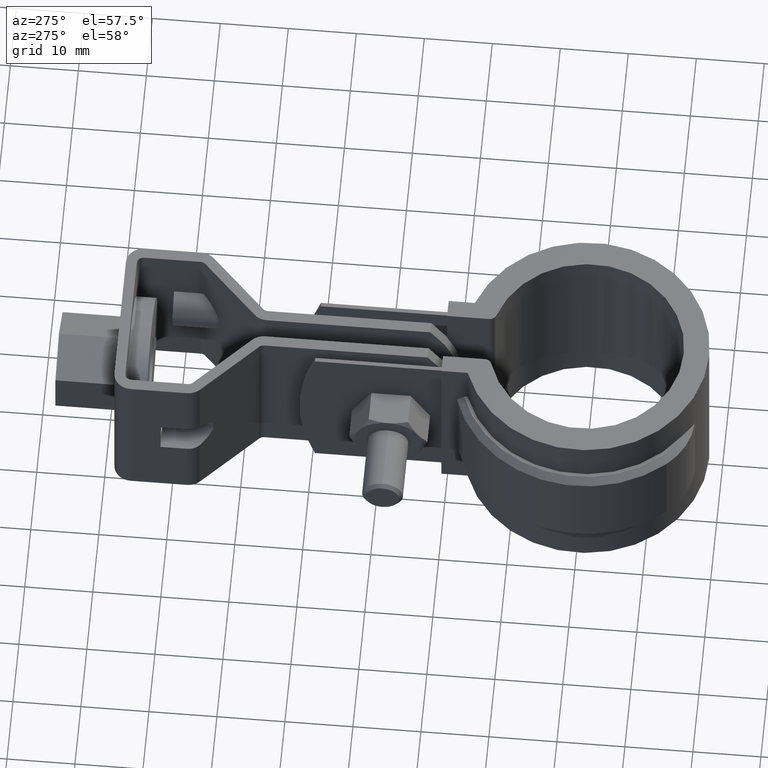
[diagram: clean part render]
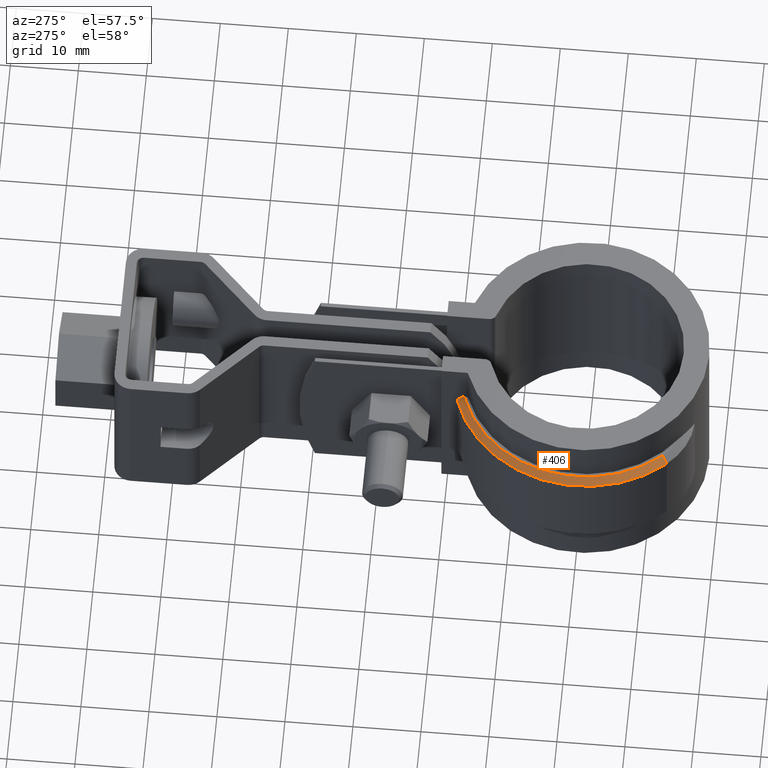
[diagram: same view with one face highlighted and labeled with its STEP entity id]
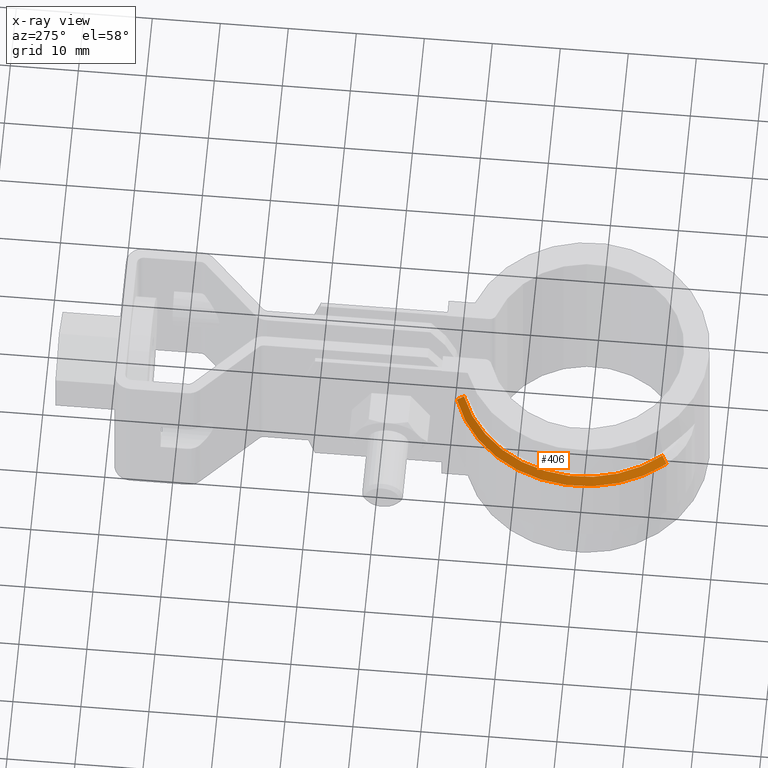
[diagram: x-ray of the same camera — body ghosted, the highlighted face saturated]
A machine part, auxiliary view. The second image highlights one B-rep face of the part: STEP entity #406.
The next image is the same camera in x-ray: the body ghosted, the highlighted face saturated — about 0% of this face is hidden behind the body in this view.
In plain terms, the highlighted conical surface has half-angle 45 deg.
Its self-contained STEP definition (entity closure, byte-faithful):
#406 = ADVANCED_FACE( '', ( #711 ), #712, .T. );
#711 = FACE_OUTER_BOUND( '', #1593, .T. );
#712 = CONICAL_SURFACE( '', #1594, 18.5350000000000, 0.785398163397447 );
#1593 = EDGE_LOOP( '', ( #3715, #3716, #3717, #3718 ) );
#1594 = AXIS2_PLACEMENT_3D( '', #3719, #3720, #3721 );
#3715 = ORIENTED_EDGE( '', *, *, #4781, .F. );
#3716 = ORIENTED_EDGE( '', *, *, #4941, .F. );
#3717 = ORIENTED_EDGE( '', *, *, #4956, .F. );
#3718 = ORIENTED_EDGE( '', *, *, #4959, .F. );
#3719 = CARTESIAN_POINT( '', ( -8.67361737988404E-016, 0.000000000000000, -5.00000000000000 ) );
#3720 = DIRECTION( '', ( 0.000000000000000, 0.000000000000000, -1.00000000000000 ) );
#3721 = DIRECTION( '', ( -1.00000000000000, 0.000000000000000, 0.000000000000000 ) );
#4781 = EDGE_CURVE( '', #5457, #5459, #5460, .T. );
#4941 = EDGE_CURVE( '', #5732, #5457, #5734, .F. );
#4956 = EDGE_CURVE( '', #5754, #5732, #5755, .T. );
#4959 = EDGE_CURVE( '', #5459, #5754, #5758, .T. );
#5457 = VERTEX_POINT( '', #7151 );
#5459 = VERTEX_POINT( '', #7154 );
#5460 = B_SPLINE_CURVE_WITH_KNOTS( '', 3, ( #7155, #7156, #7157, #7158 ), .UNSPECIFIED., .F., .F., ( 4, 4 ), ( 0.000000000000000, 0.00145414847532090 ), .UNSPECIFIED. );
#5732 = VERTEX_POINT( '', #8192 );
#5734 = CIRCLE( '', #8195, 19.5350000000000 );
#5754 = VERTEX_POINT( '', #8219 );
#5755 = LINE( '', #8220, #8221 );
#5758 = CIRCLE( '', #8224, 18.5350000000000 );
#7151 = CARTESIAN_POINT( '', ( -6.10000000000000, 18.5581848519730, -6.00000000000000 ) );
#7154 = CARTESIAN_POINT( '', ( -6.10000000000000, 17.5024633980477, -5.00000000000000 ) );
#7155 = CARTESIAN_POINT( '', ( -6.10000000000000, 18.5581848519730, -6.00000000000000 ) );
#7156 = CARTESIAN_POINT( '', ( -6.10000000000000, 18.2067653264390, -5.66615262270526 ) );
#7157 = CARTESIAN_POINT( '', ( -6.10000000000000, 17.8548851318032, -5.33278923634920 ) );
#7158 = CARTESIAN_POINT( '', ( -6.10000000000000, 17.5024633980477, -5.00000000000000 ) );
#8192 = CARTESIAN_POINT( '', ( -14.5540076052262, -13.0306211527700, -6.00000000000000 ) );
#8195 = AXIS2_PLACEMENT_3D( '', #9220, #9221, #9222 );
#8219 = CARTESIAN_POINT( '', ( -13.8089854600905, -12.3635814213766, -5.00000000000000 ) );
#8220 = CARTESIAN_POINT( '', ( -13.8089854600905, -12.3635814213766, -5.00000000000000 ) );
#8221 = VECTOR( '', #9257, 1000.00000000000 );
#8224 = AXIS2_PLACEMENT_3D( '', #9264, #9265, #9266 );
#9220 = CARTESIAN_POINT( '', ( -8.67361737988404E-016, 0.000000000000000, -6.00000000000000 ) );
#9221 = DIRECTION( '', ( 0.000000000000000, 0.000000000000000, 1.00000000000000 ) );
#9222 = DIRECTION( '', ( 1.00000000000000, 0.000000000000000, 0.000000000000000 ) );
#9257 = DIRECTION( '', ( -0.526810210959614, -0.471668317389122, -0.707106781186548 ) );
#9264 = CARTESIAN_POINT( '', ( -8.67361737988404E-016, 0.000000000000000, -5.00000000000000 ) );
#9265 = DIRECTION( '', ( 0.000000000000000, 0.000000000000000, 1.00000000000000 ) );
#9266 = DIRECTION( '', ( 1.00000000000000, 0.000000000000000, 0.000000000000000 ) );